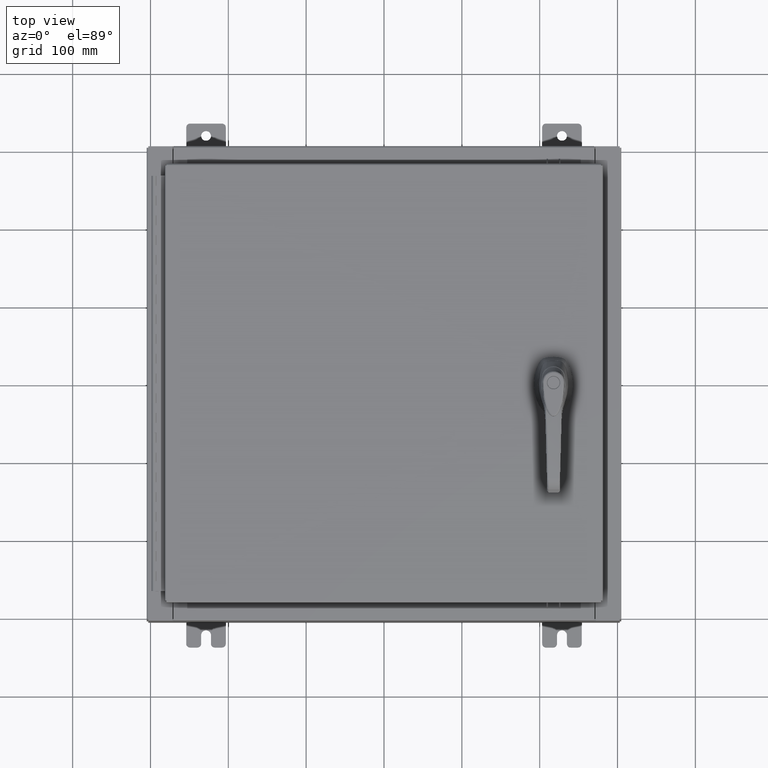
[diagram: clean part render]
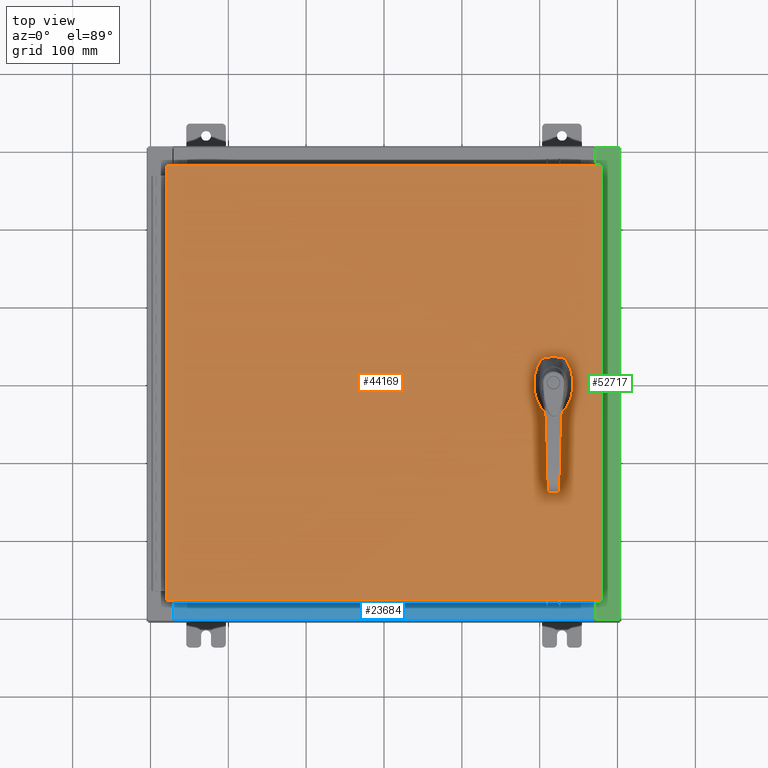
[diagram: same view with three faces highlighted in distinct colors, each labeled with its STEP entity id]
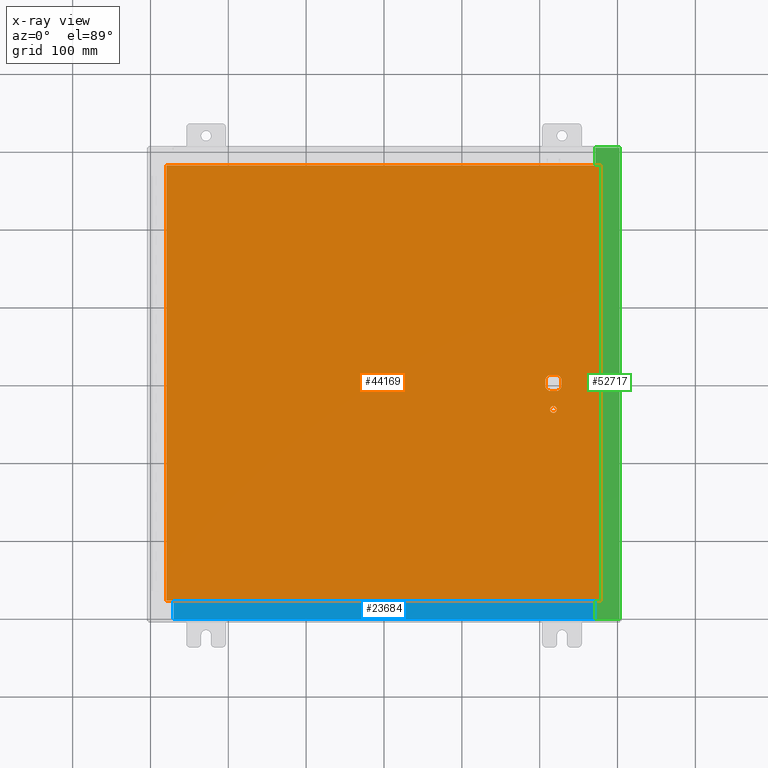
[diagram: x-ray of the same camera — body ghosted, the three highlighted faces saturated]
A machine part, top view with three faces highlighted in distinct colors.
The next image is the same camera in x-ray (body ghosted, the three faces saturated) — at least one of them is partly hidden behind the body in this view.
Their STEP definitions:

[orange] entity #44169 — the highlighted planar face has unit normal (0, 0, -1).
#1116 = VERTEX_POINT ( 'NONE', #1573 ) ;
#1573 = CARTESIAN_POINT ( 'NONE',  ( 8.778227370756305000, 0.4029999999999252000, 0.0000000000000000000 ) ) ;
#1699 = EDGE_CURVE ( 'NONE', #14262, #81093, #25530, .T. ) ;
#2102 = FACE_BOUND ( 'NONE', #107534, .T. ) ;
#2912 = EDGE_CURVE ( 'NONE', #65010, #79416, #61085, .T. ) ;
#5578 = CARTESIAN_POINT ( 'NONE',  ( 8.377772629243686700, 0.4029999999999252000, 0.0000000000000000000 ) ) ;
#6310 = ORIENTED_EDGE ( 'NONE', *, *, #65466, .F. ) ;
#6438 = DIRECTION ( 'NONE',  ( -0.0000000000000000000, 0.0000000000000000000, 1.000000000000000000 ) ) ;
#7013 = CARTESIAN_POINT ( 'NONE',  ( 8.980999999999921700, 2.450686610769031800E-014, 0.0000000000000000000 ) ) ;
#7263 = DIRECTION ( 'NONE',  ( 1.000000000000000000, 0.0000000000000000000, 0.0000000000000000000 ) ) ;
#7842 = LINE ( 'NONE', #58196, #51728 ) ;
#8312 = VECTOR ( 'NONE', #96290, 39.37007874015748100 ) ;
#8516 = DIRECTION ( 'NONE',  ( 2.728745808672812900E-015, -1.000000000000000000, 0.0000000000000000000 ) ) ;
#10070 = EDGE_CURVE ( 'NONE', #11386, #81093, #42309, .T. ) ;
#11386 = VERTEX_POINT ( 'NONE', #39316 ) ;
#12153 = EDGE_CURVE ( 'NONE', #79416, #66660, #69442, .T. ) ;
#14262 = VERTEX_POINT ( 'NONE', #65390 ) ;
#14465 = VECTOR ( 'NONE', #35221, 39.37007874015748100 ) ;
#16019 = EDGE_CURVE ( 'NONE', #88827, #50975, #7842, .T. ) ;
#17211 = LINE ( 'NONE', #43680, #14465 ) ;
#19035 = EDGE_CURVE ( 'NONE', #94194, #82885, #60984, .T. ) ;
#20457 = CARTESIAN_POINT ( 'NONE',  ( 8.577999999999995900, 0.0000000000000000000, 0.0000000000000000000 ) ) ;
#21467 = DIRECTION ( 'NONE',  ( -0.0000000000000000000, 0.0000000000000000000, 1.000000000000000000 ) ) ;
#23183 = AXIS2_PLACEMENT_3D ( 'NONE', #58971, #6438, #67762 ) ;
#23284 = DIRECTION ( 'NONE',  ( 0.0000000000000000000, -1.000000000000000000, 0.0000000000000000000 ) ) ;
#25530 = LINE ( 'NONE', #7013, #92750 ) ;
#26111 = CARTESIAN_POINT ( 'NONE',  ( 10.99029999999999800, 11.00629999999999600, -2.048885995248197400E-016 ) ) ;
#27249 = EDGE_LOOP ( 'NONE', ( #78101, #39561 ) ) ;
#27299 = CARTESIAN_POINT ( 'NONE',  ( 0.0000000000000000000, -0.4029999999999252000, 0.0000000000000000000 ) ) ;
#29269 = DIRECTION ( 'NONE',  ( 1.000000000000000000, 0.0000000000000000000, 0.0000000000000000000 ) ) ;
#29799 = AXIS2_PLACEMENT_3D ( 'NONE', #112289, #59790, #7263 ) ;
#32073 = ORIENTED_EDGE ( 'NONE', *, *, #10070, .F. ) ;
#32157 = LINE ( 'NONE', #47892, #99354 ) ;
#34696 = VERTEX_POINT ( 'NONE', #35690 ) ;
#34733 = DIRECTION ( 'NONE',  ( -0.0000000000000000000, 0.0000000000000000000, 1.000000000000000000 ) ) ;
#35221 = DIRECTION ( 'NONE',  ( 0.0000000000000000000, 1.000000000000000000, 0.0000000000000000000 ) ) ;
#35573 = LINE ( 'NONE', #27299, #56138 ) ;
#35690 = CARTESIAN_POINT ( 'NONE',  ( 10.99029999999999600, -11.00630000000000100, -2.048885995248197400E-016 ) ) ;
#37759 = VECTOR ( 'NONE', #47482, 39.37007874015748100 ) ;
#39316 = CARTESIAN_POINT ( 'NONE',  ( 8.778227370756305000, -0.4029999999999252000, 0.0000000000000000000 ) ) ;
#39561 = ORIENTED_EDGE ( 'NONE', *, *, #19035, .F. ) ;
#41243 = CARTESIAN_POINT ( 'NONE',  ( -10.99030000000000000, -11.00630000000000100, -2.048885995248197400E-016 ) ) ;
#41484 = CARTESIAN_POINT ( 'NONE',  ( 8.406499999999994100, -1.338000000000000100, 0.0000000000000000000 ) ) ;
#42309 = CIRCLE ( 'NONE', #29799, 0.4499999999999156900 ) ;
#43349 = PLANE ( 'NONE',  #106984 ) ;
#43680 = CARTESIAN_POINT ( 'NONE',  ( 10.99029999999999600, -11.00630000000000100, -2.048885995248197400E-016 ) ) ;
#44169 = ADVANCED_FACE ( 'NONE', ( #95365, #92603, #2102 ), #43349, .F. ) ;
#47135 = LINE ( 'NONE', #41243, #93742 ) ;
#47482 = DIRECTION ( 'NONE',  ( 0.0000000000000000000, -1.000000000000000000, 0.0000000000000000000 ) ) ;
#47838 = CARTESIAN_POINT ( 'NONE',  ( 8.175000000000070000, 0.0000000000000000000, 0.0000000000000000000 ) ) ;
#47892 = CARTESIAN_POINT ( 'NONE',  ( 0.0000000000000000000, 0.4029999999999252000, 0.0000000000000000000 ) ) ;
#48110 = CIRCLE ( 'NONE', #104255, 0.4499999999999156900 ) ;
#48629 = CARTESIAN_POINT ( 'NONE',  ( 8.577999999999995900, 0.0000000000000000000, 0.0000000000000000000 ) ) ;
#50034 = DIRECTION ( 'NONE',  ( 1.000000000000000000, -0.0000000000000000000, -0.0000000000000000000 ) ) ;
#50481 = AXIS2_PLACEMENT_3D ( 'NONE', #87275, #34733, #96085 ) ;
#50717 = ORIENTED_EDGE ( 'NONE', *, *, #80009, .F. ) ;
#50975 = VERTEX_POINT ( 'NONE', #72595 ) ;
#51450 = ORIENTED_EDGE ( 'NONE', *, *, #86231, .T. ) ;
#51728 = VECTOR ( 'NONE', #23284, 39.37007874015748100 ) ;
#52137 = DIRECTION ( 'NONE',  ( -1.000000000000000000, 0.0000000000000000000, -0.0000000000000000000 ) ) ;
#54691 = ORIENTED_EDGE ( 'NONE', *, *, #107932, .F. ) ;
#56138 = VECTOR ( 'NONE', #62199, 39.37007874015748100 ) ;
#57445 = DIRECTION ( 'NONE',  ( 1.000000000000000000, 0.0000000000000000000, 0.0000000000000000000 ) ) ;
#58196 = CARTESIAN_POINT ( 'NONE',  ( -10.99030000000000500, 11.00629999999999600, -1.348849946871729900E-015 ) ) ;
#58515 = ORIENTED_EDGE ( 'NONE', *, *, #71205, .T. ) ;
#58971 = CARTESIAN_POINT ( 'NONE',  ( 8.577999999999995900, -1.338000000000000100, 0.0000000000000000000 ) ) ;
#59790 = DIRECTION ( 'NONE',  ( -0.0000000000000000000, 0.0000000000000000000, 1.000000000000000000 ) ) ;
#60984 = CIRCLE ( 'NONE', #23183, 0.1715000000000011500 ) ;
#61085 = LINE ( 'NONE', #47838, #37759 ) ;
#62199 = DIRECTION ( 'NONE',  ( 1.000000000000000000, 0.0000000000000000000, 0.0000000000000000000 ) ) ;
#62342 = CARTESIAN_POINT ( 'NONE',  ( 8.175000000000070000, 0.2002273707563079800, 0.0000000000000000000 ) ) ;
#62365 = ORIENTED_EDGE ( 'NONE', *, *, #109048, .F. ) ;
#63220 = ORIENTED_EDGE ( 'NONE', *, *, #1699, .T. ) ;
#63717 = CARTESIAN_POINT ( 'NONE',  ( -10.99030000000000500, 11.00629999999999600, -1.348849946871729900E-015 ) ) ;
#63956 = ORIENTED_EDGE ( 'NONE', *, *, #2912, .F. ) ;
#65010 = VERTEX_POINT ( 'NONE', #62342 ) ;
#65390 = CARTESIAN_POINT ( 'NONE',  ( 8.980999999999921700, 0.2002273707563080300, 0.0000000000000000000 ) ) ;
#65466 = EDGE_CURVE ( 'NONE', #66660, #11386, #35573, .T. ) ;
#66660 = VERTEX_POINT ( 'NONE', #67021 ) ;
#67021 = CARTESIAN_POINT ( 'NONE',  ( 8.377772629243686700, -0.4029999999999252000, 0.0000000000000000000 ) ) ;
#67748 = VERTEX_POINT ( 'NONE', #74320 ) ;
#67762 = DIRECTION ( 'NONE',  ( 1.000000000000000000, 0.0000000000000000000, 0.0000000000000000000 ) ) ;
#69442 = CIRCLE ( 'NONE', #50481, 0.4499999999999156900 ) ;
#71205 = EDGE_CURVE ( 'NONE', #34696, #67748, #17211, .T. ) ;
#72595 = CARTESIAN_POINT ( 'NONE',  ( -10.99030000000000000, -11.00630000000000100, -2.048885995248197400E-016 ) ) ;
#73992 = CARTESIAN_POINT ( 'NONE',  ( 8.577999999999995900, -1.338000000000000100, 0.0000000000000000000 ) ) ;
#74147 = CIRCLE ( 'NONE', #89540, 0.1715000000000011500 ) ;
#74320 = CARTESIAN_POINT ( 'NONE',  ( 10.99029999999999800, 11.00629999999999600, -2.048885995248197400E-016 ) ) ;
#78101 = ORIENTED_EDGE ( 'NONE', *, *, #84491, .F. ) ;
#78193 = CARTESIAN_POINT ( 'NONE',  ( 0.0000000000000000000, 0.0000000000000000000, 0.0000000000000000000 ) ) ;
#79271 = AXIS2_PLACEMENT_3D ( 'NONE', #48629, #109942, #57445 ) ;
#79416 = VERTEX_POINT ( 'NONE', #85639 ) ;
#80009 = EDGE_CURVE ( 'NONE', #1116, #107076, #32157, .T. ) ;
#81093 = VERTEX_POINT ( 'NONE', #108574 ) ;
#81809 = DIRECTION ( 'NONE',  ( -0.0000000000000000000, 0.0000000000000000000, 1.000000000000000000 ) ) ;
#82822 = DIRECTION ( 'NONE',  ( 1.000000000000000000, 0.0000000000000000000, 0.0000000000000000000 ) ) ;
#82885 = VERTEX_POINT ( 'NONE', #85030 ) ;
#83053 = ORIENTED_EDGE ( 'NONE', *, *, #16019, .T. ) ;
#83371 = EDGE_LOOP ( 'NONE', ( #83561, #58515, #51450, #83053 ) ) ;
#83561 = ORIENTED_EDGE ( 'NONE', *, *, #106145, .T. ) ;
#84491 = EDGE_CURVE ( 'NONE', #82885, #94194, #74147, .T. ) ;
#85030 = CARTESIAN_POINT ( 'NONE',  ( 8.749499999999997600, -1.338000000000000100, 0.0000000000000000000 ) ) ;
#85639 = CARTESIAN_POINT ( 'NONE',  ( 8.175000000000070000, -0.2002273707563079800, 0.0000000000000000000 ) ) ;
#86231 = EDGE_CURVE ( 'NONE', #67748, #88827, #98840, .T. ) ;
#87275 = CARTESIAN_POINT ( 'NONE',  ( 8.577999999999995900, 0.0000000000000000000, 0.0000000000000000000 ) ) ;
#88827 = VERTEX_POINT ( 'NONE', #63717 ) ;
#89540 = AXIS2_PLACEMENT_3D ( 'NONE', #73992, #21467, #82822 ) ;
#90805 = CIRCLE ( 'NONE', #79271, 0.4499999999999156900 ) ;
#92603 = FACE_OUTER_BOUND ( 'NONE', #83371, .T. ) ;
#92750 = VECTOR ( 'NONE', #8516, 39.37007874015748100 ) ;
#93103 = ORIENTED_EDGE ( 'NONE', *, *, #12153, .F. ) ;
#93742 = VECTOR ( 'NONE', #50034, 39.37007874015748100 ) ;
#94194 = VERTEX_POINT ( 'NONE', #41484 ) ;
#95365 = FACE_BOUND ( 'NONE', #27249, .T. ) ;
#96085 = DIRECTION ( 'NONE',  ( 1.000000000000000000, 0.0000000000000000000, 0.0000000000000000000 ) ) ;
#96290 = DIRECTION ( 'NONE',  ( -1.000000000000000000, -0.0000000000000000000, -0.0000000000000000000 ) ) ;
#98840 = LINE ( 'NONE', #26111, #8312 ) ;
#99354 = VECTOR ( 'NONE', #109199, 39.37007874015748100 ) ;
#104255 = AXIS2_PLACEMENT_3D ( 'NONE', #20457, #81809, #29269 ) ;
#104617 = DIRECTION ( 'NONE',  ( 0.0000000000000000000, 0.0000000000000000000, -1.000000000000000000 ) ) ;
#106145 = EDGE_CURVE ( 'NONE', #50975, #34696, #47135, .T. ) ;
#106984 = AXIS2_PLACEMENT_3D ( 'NONE', #78193, #104617, #52137 ) ;
#107076 = VERTEX_POINT ( 'NONE', #5578 ) ;
#107534 = EDGE_LOOP ( 'NONE', ( #63220, #32073, #6310, #93103, #63956, #62365, #50717, #54691 ) ) ;
#107932 = EDGE_CURVE ( 'NONE', #14262, #1116, #90805, .T. ) ;
#108574 = CARTESIAN_POINT ( 'NONE',  ( 8.980999999999921700, -0.2002273707563079800, 0.0000000000000000000 ) ) ;
#109048 = EDGE_CURVE ( 'NONE', #107076, #65010, #48110, .T. ) ;
#109199 = DIRECTION ( 'NONE',  ( -1.000000000000000000, 0.0000000000000000000, 0.0000000000000000000 ) ) ;
#109942 = DIRECTION ( 'NONE',  ( -0.0000000000000000000, 0.0000000000000000000, 1.000000000000000000 ) ) ;
#112289 = CARTESIAN_POINT ( 'NONE',  ( 8.577999999999995900, 0.0000000000000000000, 0.0000000000000000000 ) ) ;

[blue] entity #23684 — the highlighted planar face has unit normal (-0, -0, 1).
#305 = CARTESIAN_POINT ( 'NONE',  ( 10.63720000000000200, -1.287299999999999900, 3.000000000000005300 ) ) ;
#8810 = AXIS2_PLACEMENT_3D ( 'NONE', #73492, #12535, #73866 ) ;
#9723 = EDGE_CURVE ( 'NONE', #113772, #108006, #35456, .T. ) ;
#12122 = VECTOR ( 'NONE', #110239, 39.37007874015748100 ) ;
#12535 = DIRECTION ( 'NONE',  ( 0.0000000000000000000, 3.566381192773190000E-015, 1.000000000000000000 ) ) ;
#15174 = CARTESIAN_POINT ( 'NONE',  ( 10.63720000000000400, -1.287299999999999900, 3.000000000000005300 ) ) ;
#20068 = VECTOR ( 'NONE', #72252, 39.37007874015748100 ) ;
#22798 = LINE ( 'NONE', #15174, #20068 ) ;
#23684 = ADVANCED_FACE ( 'NONE', ( #104338 ), #56250, .T. ) ;
#25998 = VERTEX_POINT ( 'NONE', #70191 ) ;
#27440 = ORIENTED_EDGE ( 'NONE', *, *, #9723, .F. ) ;
#29069 = ORIENTED_EDGE ( 'NONE', *, *, #30445, .F. ) ;
#30445 = EDGE_CURVE ( 'NONE', #25998, #95433, #77670, .T. ) ;
#31005 = VECTOR ( 'NONE', #32370, 39.37007874015748100 ) ;
#32370 = DIRECTION ( 'NONE',  ( -0.0000000000000000000, -1.000000000000000000, 3.566381192773190000E-015 ) ) ;
#35456 = LINE ( 'NONE', #40104, #12122 ) ;
#38137 = CARTESIAN_POINT ( 'NONE',  ( -10.63720000000000200, -1.287299999999999200, 3.000000000000005300 ) ) ;
#39047 = EDGE_CURVE ( 'NONE', #25998, #108006, #79402, .T. ) ;
#40104 = CARTESIAN_POINT ( 'NONE',  ( -10.63720000000000200, -0.07469999999999973900, 3.000000000000000900 ) ) ;
#40438 = ORIENTED_EDGE ( 'NONE', *, *, #70241, .F. ) ;
#49240 = CARTESIAN_POINT ( 'NONE',  ( -2.252313287748515100E-018, -0.08770000000000000000, 3.000000000000001300 ) ) ;
#50371 = EDGE_LOOP ( 'NONE', ( #27440, #40438, #29069, #98462 ) ) ;
#56250 = PLANE ( 'NONE',  #8810 ) ;
#58023 = DIRECTION ( 'NONE',  ( -1.000000000000000000, 2.568202152506545800E-017, -9.159187855938968600E-032 ) ) ;
#66657 = CARTESIAN_POINT ( 'NONE',  ( -10.63720000000000200, -0.08770000000000000000, 3.000000000000000900 ) ) ;
#70191 = CARTESIAN_POINT ( 'NONE',  ( 10.63720000000000400, -0.08769999999999965300, 3.000000000000000900 ) ) ;
#70241 = EDGE_CURVE ( 'NONE', #95433, #113772, #22798, .T. ) ;
#72252 = DIRECTION ( 'NONE',  ( -1.000000000000000000, 0.0000000000000000000, 0.0000000000000000000 ) ) ;
#73492 = CARTESIAN_POINT ( 'NONE',  ( 0.0000000000000000000, 1.069354855923099900E-014, 3.000000000000000900 ) ) ;
#73866 = DIRECTION ( 'NONE',  ( 0.0000000000000000000, -1.000000000000000000, 3.566381192773190000E-015 ) ) ;
#77670 = LINE ( 'NONE', #104741, #31005 ) ;
#79402 = LINE ( 'NONE', #49240, #97226 ) ;
#95433 = VERTEX_POINT ( 'NONE', #305 ) ;
#97226 = VECTOR ( 'NONE', #58023, 39.37007874015748100 ) ;
#98462 = ORIENTED_EDGE ( 'NONE', *, *, #39047, .T. ) ;
#104338 = FACE_OUTER_BOUND ( 'NONE', #50371, .T. ) ;
#104741 = CARTESIAN_POINT ( 'NONE',  ( 10.63720000000000200, -1.300299999999999800, 3.000000000000005300 ) ) ;
#108006 = VERTEX_POINT ( 'NONE', #66657 ) ;
#110239 = DIRECTION ( 'NONE',  ( -0.0000000000000000000, 1.000000000000000000, -3.566381192773190000E-015 ) ) ;
#113772 = VERTEX_POINT ( 'NONE', #38137 ) ;

[green] entity #52717 — the highlighted planar face has unit normal (-0, 0, -1).
#457 = VECTOR ( 'NONE', #34988, 39.37007874015748100 ) ;
#1381 = VERTEX_POINT ( 'NONE', #14700 ) ;
#3883 = VECTOR ( 'NONE', #100758, 39.37007874015748100 ) ;
#4938 = EDGE_CURVE ( 'NONE', #101586, #14013, #34781, .T. ) ;
#5982 = EDGE_CURVE ( 'NONE', #110596, #102724, #73042, .T. ) ;
#8916 = AXIS2_PLACEMENT_3D ( 'NONE', #89424, #36926, #98259 ) ;
#10075 = DIRECTION ( 'NONE',  ( 1.000000000000000000, 0.0000000000000000000, -2.170286390199955400E-014 ) ) ;
#10398 = VECTOR ( 'NONE', #71715, 39.37007874015748100 ) ;
#10697 = ORIENTED_EDGE ( 'NONE', *, *, #22209, .F. ) ;
#10744 = CIRCLE ( 'NONE', #8916, 0.01867499999999949400 ) ;
#11228 = DIRECTION ( 'NONE',  ( -1.000000000000000000, 0.0000000000000000000, 7.132762385546384700E-015 ) ) ;
#12903 = CARTESIAN_POINT ( 'NONE',  ( 10.71270000000002100, -10.59375000000000200, 5.925300000000008000 ) ) ;
#13592 = VERTEX_POINT ( 'NONE', #107672 ) ;
#14013 = VERTEX_POINT ( 'NONE', #107174 ) ;
#14032 = CARTESIAN_POINT ( 'NONE',  ( 10.69970000000002000, 11.92529999999999600, 5.925300000000009800 ) ) ;
#14669 = VERTEX_POINT ( 'NONE', #69149 ) ;
#14700 = CARTESIAN_POINT ( 'NONE',  ( 10.69970000000002000, -10.63110000000000200, 5.925300000000009800 ) ) ;
#14765 = ORIENTED_EDGE ( 'NONE', *, *, #75716, .F. ) ;
#17472 = VECTOR ( 'NONE', #104951, 39.37007874015748100 ) ;
#18618 = CARTESIAN_POINT ( 'NONE',  ( 10.71270000000002100, -10.59375000000000200, 5.925300000000008000 ) ) ;
#20198 = LINE ( 'NONE', #52081, #17472 ) ;
#20611 = CARTESIAN_POINT ( 'NONE',  ( 10.75005000000002100, -10.59375000000000200, 5.925300000000009800 ) ) ;
#20705 = CARTESIAN_POINT ( 'NONE',  ( 10.75005000000002100, 10.63109999999999300, 5.925300000000008000 ) ) ;
#22209 = EDGE_CURVE ( 'NONE', #14013, #38664, #90837, .T. ) ;
#23157 = FACE_OUTER_BOUND ( 'NONE', #35827, .T. ) ;
#23405 = DIRECTION ( 'NONE',  ( 7.132762385546384700E-015, 0.0000000000000000000, 1.000000000000000000 ) ) ;
#26046 = DIRECTION ( 'NONE',  ( 0.0000000000000000000, -1.000000000000000000, 0.0000000000000000000 ) ) ;
#26497 = LINE ( 'NONE', #61062, #70401 ) ;
#29497 = CARTESIAN_POINT ( 'NONE',  ( 10.75005000000002100, -10.63110000000000200, 5.925300000000009800 ) ) ;
#34781 = LINE ( 'NONE', #18618, #101974 ) ;
#34988 = DIRECTION ( 'NONE',  ( -1.000000000000000000, 0.0000000000000000000, 0.0000000000000000000 ) ) ;
#35779 = VERTEX_POINT ( 'NONE', #66478 ) ;
#35827 = EDGE_LOOP ( 'NONE', ( #73899, #87794, #44112, #14765, #47095, #48014, #58366, #48921, #10697, #40225, #67624, #68355 ) ) ;
#36926 = DIRECTION ( 'NONE',  ( 7.132762385546384700E-015, 0.0000000000000000000, 1.000000000000000000 ) ) ;
#38664 = VERTEX_POINT ( 'NONE', #87642 ) ;
#39583 = LINE ( 'NONE', #48715, #106771 ) ;
#40225 = ORIENTED_EDGE ( 'NONE', *, *, #4938, .F. ) ;
#40570 = EDGE_CURVE ( 'NONE', #1381, #35779, #20198, .T. ) ;
#40706 = VECTOR ( 'NONE', #10075, 39.37007874015748100 ) ;
#44112 = ORIENTED_EDGE ( 'NONE', *, *, #60697, .T. ) ;
#46157 = CARTESIAN_POINT ( 'NONE',  ( 4.252457061909019600E-014, 0.0000000000000000000, 5.925300000000087100 ) ) ;
#46549 = DIRECTION ( 'NONE',  ( 1.000000000000000000, 0.0000000000000000000, 0.0000000000000000000 ) ) ;
#47095 = ORIENTED_EDGE ( 'NONE', *, *, #90027, .T. ) ;
#48014 = ORIENTED_EDGE ( 'NONE', *, *, #104244, .T. ) ;
#48715 = CARTESIAN_POINT ( 'NONE',  ( 4.252457061909019600E-014, 11.92529999999999600, 5.925300000000087100 ) ) ;
#48921 = ORIENTED_EDGE ( 'NONE', *, *, #88743, .F. ) ;
#50528 = LINE ( 'NONE', #65540, #3883 ) ;
#52081 = CARTESIAN_POINT ( 'NONE',  ( 10.69970000000002000, 0.0000000000000000000, 5.925300000000009800 ) ) ;
#52621 = CARTESIAN_POINT ( 'NONE',  ( 10.75005000000002100, -10.59375000000000200, 5.925300000000008000 ) ) ;
#52717 = ADVANCED_FACE ( 'NONE', ( #23157 ), #98645, .F. ) ;
#57026 = LINE ( 'NONE', #20705, #10398 ) ;
#57513 = AXIS2_PLACEMENT_3D ( 'NONE', #75929, #23405, #84787 ) ;
#58366 = ORIENTED_EDGE ( 'NONE', *, *, #70871, .F. ) ;
#60697 = EDGE_CURVE ( 'NONE', #35779, #13592, #26497, .T. ) ;
#60712 = EDGE_CURVE ( 'NONE', #102724, #101586, #93724, .T. ) ;
#61062 = CARTESIAN_POINT ( 'NONE',  ( 4.252457061909019600E-014, -11.92530000000000400, 5.925300000000087100 ) ) ;
#61867 = VERTEX_POINT ( 'NONE', #106957 ) ;
#63737 = DIRECTION ( 'NONE',  ( -7.132762385546384700E-015, 0.0000000000000000000, -1.000000000000000000 ) ) ;
#65540 = CARTESIAN_POINT ( 'NONE',  ( 11.91230000000001800, -11.92530000000000400, 5.925300000000001800 ) ) ;
#66478 = CARTESIAN_POINT ( 'NONE',  ( 10.69970000000002000, -11.92530000000000400, 5.925300000000009800 ) ) ;
#67624 = ORIENTED_EDGE ( 'NONE', *, *, #60712, .F. ) ;
#68355 = ORIENTED_EDGE ( 'NONE', *, *, #5982, .F. ) ;
#69149 = CARTESIAN_POINT ( 'NONE',  ( 11.91230000000001800, 11.92529999999999600, 5.925300000000001800 ) ) ;
#69409 = CARTESIAN_POINT ( 'NONE',  ( 10.69970000000002000, 10.63109999999999500, 5.925300000000009800 ) ) ;
#70076 = VERTEX_POINT ( 'NONE', #14032 ) ;
#70401 = VECTOR ( 'NONE', #104724, 39.37007874015748100 ) ;
#70871 = EDGE_CURVE ( 'NONE', #61867, #75417, #57026, .T. ) ;
#71375 = CARTESIAN_POINT ( 'NONE',  ( 10.69970000000002000, -10.63110000000000200, 5.925300000000008900 ) ) ;
#71715 = DIRECTION ( 'NONE',  ( -1.000000000000000000, 0.0000000000000000000, 2.170286390199955400E-014 ) ) ;
#73042 = CIRCLE ( 'NONE', #57513, 0.01867499999999949400 ) ;
#73899 = ORIENTED_EDGE ( 'NONE', *, *, #92376, .F. ) ;
#75137 = DIRECTION ( 'NONE',  ( -1.000000000000000000, 0.0000000000000000000, 7.132762385546384700E-015 ) ) ;
#75417 = VERTEX_POINT ( 'NONE', #69409 ) ;
#75716 = EDGE_CURVE ( 'NONE', #14669, #13592, #50528, .T. ) ;
#75929 = CARTESIAN_POINT ( 'NONE',  ( 10.75005000000002100, -10.61242500000000200, 5.925300000000008000 ) ) ;
#78577 = CARTESIAN_POINT ( 'NONE',  ( 10.69970000000002000, 0.0000000000000000000, 5.925300000000009800 ) ) ;
#79960 = DIRECTION ( 'NONE',  ( -0.0000000000000000000, 1.000000000000000000, -0.0000000000000000000 ) ) ;
#84787 = DIRECTION ( 'NONE',  ( 1.000000000000000000, 0.0000000000000000000, 0.0000000000000000000 ) ) ;
#84858 = CARTESIAN_POINT ( 'NONE',  ( 10.71270000000002100, 10.59374999999999300, 5.925300000000008000 ) ) ;
#87329 = LINE ( 'NONE', #71375, #40706 ) ;
#87642 = CARTESIAN_POINT ( 'NONE',  ( 10.75005000000002100, 10.59374999999999300, 5.925300000000009800 ) ) ;
#87794 = ORIENTED_EDGE ( 'NONE', *, *, #40570, .T. ) ;
#88743 = EDGE_CURVE ( 'NONE', #38664, #61867, #10744, .T. ) ;
#89424 = CARTESIAN_POINT ( 'NONE',  ( 10.75005000000002100, 10.61242499999999300, 5.925300000000008000 ) ) ;
#90027 = EDGE_CURVE ( 'NONE', #14669, #70076, #39583, .T. ) ;
#90197 = AXIS2_PLACEMENT_3D ( 'NONE', #46157, #63737, #11228 ) ;
#90837 = LINE ( 'NONE', #84858, #111370 ) ;
#92376 = EDGE_CURVE ( 'NONE', #1381, #110596, #87329, .T. ) ;
#93724 = LINE ( 'NONE', #52621, #457 ) ;
#96746 = LINE ( 'NONE', #78577, #102203 ) ;
#98259 = DIRECTION ( 'NONE',  ( 1.000000000000000000, 0.0000000000000000000, 0.0000000000000000000 ) ) ;
#98645 = PLANE ( 'NONE',  #90197 ) ;
#100758 = DIRECTION ( 'NONE',  ( -0.0000000000000000000, -1.000000000000000000, -0.0000000000000000000 ) ) ;
#101586 = VERTEX_POINT ( 'NONE', #12903 ) ;
#101974 = VECTOR ( 'NONE', #79960, 39.37007874015748100 ) ;
#102203 = VECTOR ( 'NONE', #26046, 39.37007874015748100 ) ;
#102724 = VERTEX_POINT ( 'NONE', #20611 ) ;
#104244 = EDGE_CURVE ( 'NONE', #70076, #75417, #96746, .T. ) ;
#104724 = DIRECTION ( 'NONE',  ( 1.000000000000000000, 0.0000000000000000000, -7.132762385546384700E-015 ) ) ;
#104951 = DIRECTION ( 'NONE',  ( 0.0000000000000000000, -1.000000000000000000, 0.0000000000000000000 ) ) ;
#106771 = VECTOR ( 'NONE', #75137, 39.37007874015748100 ) ;
#106957 = CARTESIAN_POINT ( 'NONE',  ( 10.75005000000002100, 10.63109999999999300, 5.925300000000009800 ) ) ;
#107174 = CARTESIAN_POINT ( 'NONE',  ( 10.71270000000002100, 10.59374999999999300, 5.925300000000008000 ) ) ;
#107672 = CARTESIAN_POINT ( 'NONE',  ( 11.91230000000001800, -11.92530000000000400, 5.925300000000001800 ) ) ;
#110596 = VERTEX_POINT ( 'NONE', #29497 ) ;
#111370 = VECTOR ( 'NONE', #46549, 39.37007874015748100 ) ;